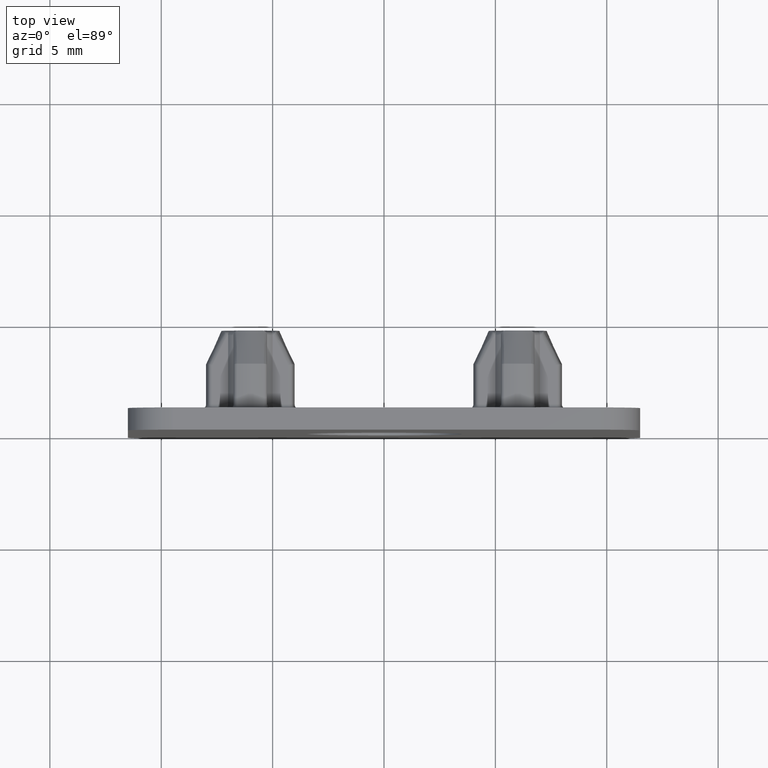
[diagram: clean part render]
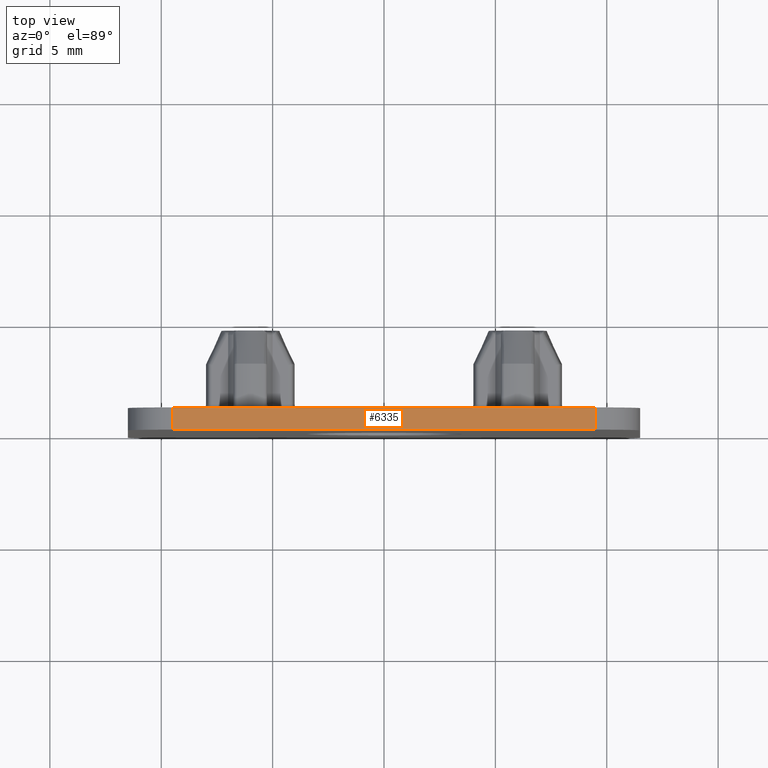
[diagram: same view with one face highlighted and labeled with its STEP entity id]
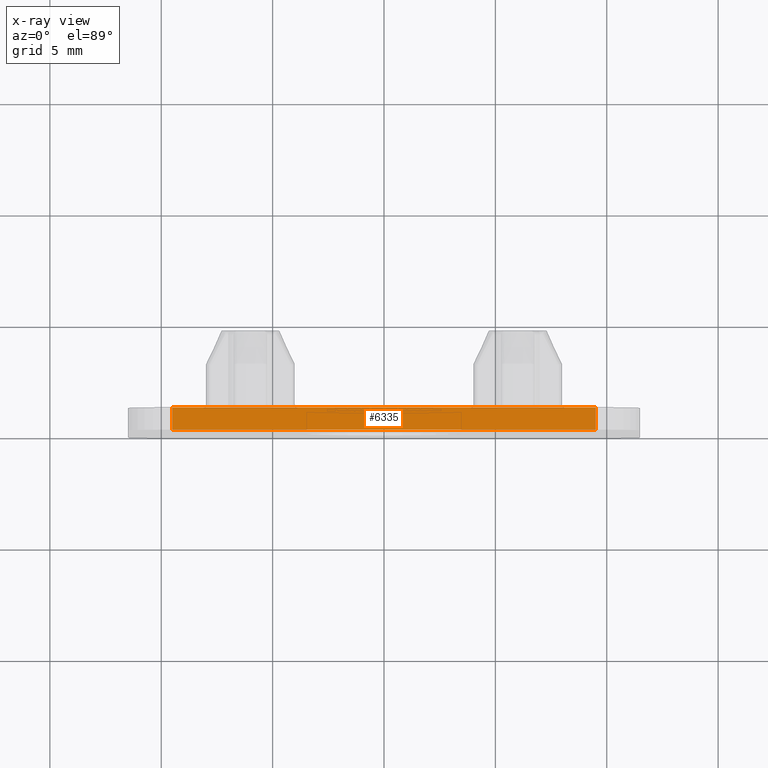
[diagram: x-ray of the same camera — body ghosted, the highlighted face saturated]
A machine part, top view. The second image highlights one B-rep face of the part: STEP entity #6335.
The next image is the same camera in x-ray: the body ghosted, the highlighted face saturated — about 0% of this face is hidden behind the body in this view.
In plain terms, the highlighted planar face has unit normal (0, 0, -1).
Its self-contained STEP definition (entity closure, byte-faithful):
#15 = ORIENTED_EDGE ( 'NONE', *, *, #2649, .T. ) ;
#728 = EDGE_LOOP ( 'NONE', ( #10552, #13539, #14297, #15 ) ) ;
#1157 = DIRECTION ( 'NONE',  ( -1.000000000000000000, 0.0000000000000000000, -0.0000000000000000000 ) ) ;
#2300 = VERTEX_POINT ( 'NONE', #9498 ) ;
#2449 = CARTESIAN_POINT ( 'NONE',  ( -11.50000000000000000, 1.000000000000000000, 11.49999999999999800 ) ) ;
#2649 = EDGE_CURVE ( 'NONE', #2300, #14428, #3588, .T. ) ;
#2747 = DIRECTION ( 'NONE',  ( 1.000000000000000000, 0.0000000000000000000, 0.0000000000000000000 ) ) ;
#2818 = LINE ( 'NONE', #4186, #8869 ) ;
#3588 = LINE ( 'NONE', #5436, #4806 ) ;
#3602 = DIRECTION ( 'NONE',  ( 0.0000000000000000000, 0.0000000000000000000, -1.000000000000000000 ) ) ;
#3759 = CARTESIAN_POINT ( 'NONE',  ( -11.50000000000000000, 0.0000000000000000000, 11.49999999999999800 ) ) ;
#4110 = CARTESIAN_POINT ( 'NONE',  ( 9.499999999999998200, 1.000000000000000000, 11.49999999999999800 ) ) ;
#4171 = CARTESIAN_POINT ( 'NONE',  ( -11.50000000000000000, 1.000000000000000000, 11.49999999999999800 ) ) ;
#4186 = CARTESIAN_POINT ( 'NONE',  ( -9.500000000000000000, 1.000000000000000000, 11.49999999999999800 ) ) ;
#4250 = LINE ( 'NONE', #3759, #13241 ) ;
#4491 = VERTEX_POINT ( 'NONE', #5402 ) ;
#4806 = VECTOR ( 'NONE', #7967, 1000.000000000000000 ) ;
#5054 = DIRECTION ( 'NONE',  ( 1.000000000000000000, 0.0000000000000000000, 0.0000000000000000000 ) ) ;
#5402 = CARTESIAN_POINT ( 'NONE',  ( -9.500000000000000000, 0.0000000000000000000, 11.49999999999999800 ) ) ;
#5436 = CARTESIAN_POINT ( 'NONE',  ( 9.499999999999998200, 1.000000000000000000, 11.49999999999999800 ) ) ;
#5542 = VERTEX_POINT ( 'NONE', #10609 ) ;
#6335 = ADVANCED_FACE ( 'NONE', ( #6673 ), #14032, .F. ) ;
#6538 = AXIS2_PLACEMENT_3D ( 'NONE', #2449, #3602, #1157 ) ;
#6673 = FACE_OUTER_BOUND ( 'NONE', #728, .T. ) ;
#6999 = EDGE_CURVE ( 'NONE', #5542, #4491, #2818, .T. ) ;
#7967 = DIRECTION ( 'NONE',  ( -0.0000000000000000000, 1.000000000000000000, -0.0000000000000000000 ) ) ;
#8869 = VECTOR ( 'NONE', #13130, 1000.000000000000000 ) ;
#9498 = CARTESIAN_POINT ( 'NONE',  ( 9.499999999999998200, 0.0000000000000000000, 11.49999999999999800 ) ) ;
#9504 = VECTOR ( 'NONE', #2747, 1000.000000000000000 ) ;
#10405 = EDGE_CURVE ( 'NONE', #4491, #2300, #4250, .T. ) ;
#10552 = ORIENTED_EDGE ( 'NONE', *, *, #14780, .F. ) ;
#10609 = CARTESIAN_POINT ( 'NONE',  ( -9.500000000000000000, 1.000000000000000000, 11.49999999999999800 ) ) ;
#13130 = DIRECTION ( 'NONE',  ( 0.0000000000000000000, -1.000000000000000000, 0.0000000000000000000 ) ) ;
#13241 = VECTOR ( 'NONE', #5054, 1000.000000000000000 ) ;
#13539 = ORIENTED_EDGE ( 'NONE', *, *, #6999, .T. ) ;
#14032 = PLANE ( 'NONE',  #6538 ) ;
#14297 = ORIENTED_EDGE ( 'NONE', *, *, #10405, .T. ) ;
#14428 = VERTEX_POINT ( 'NONE', #4110 ) ;
#14780 = EDGE_CURVE ( 'NONE', #5542, #14428, #15470, .T. ) ;
#15470 = LINE ( 'NONE', #4171, #9504 ) ;